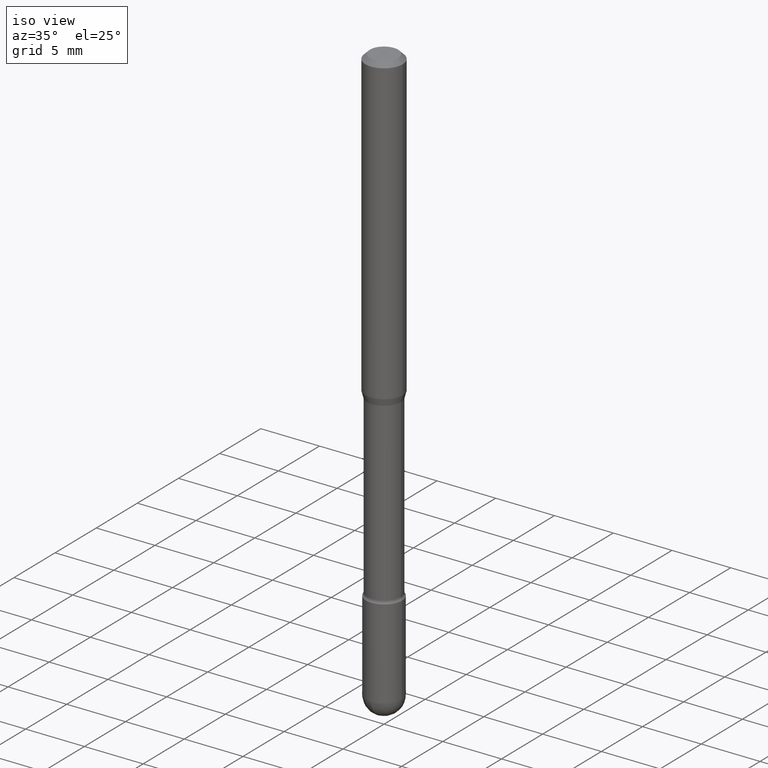
[diagram: clean part render]
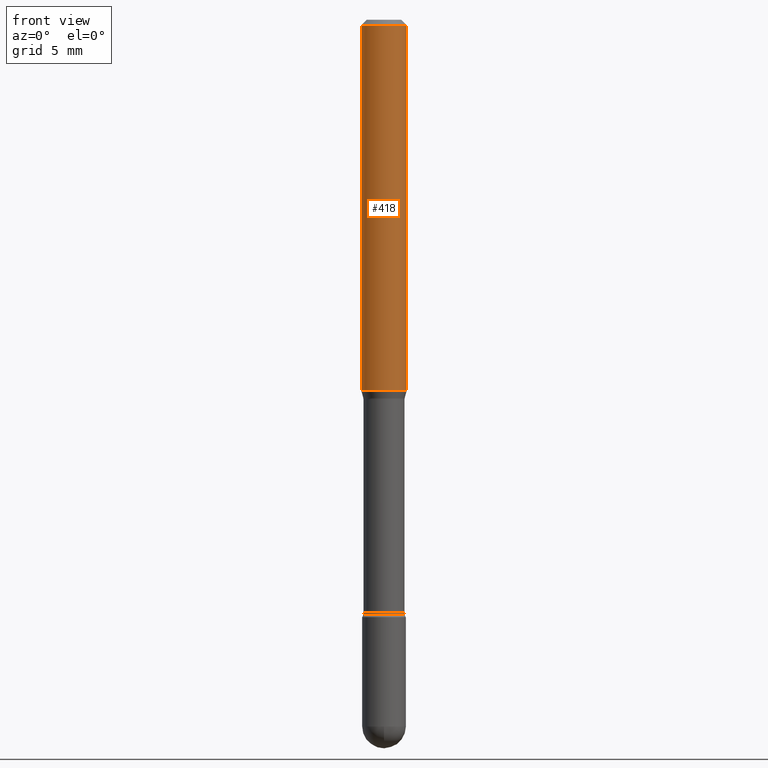
[diagram: tour spotlight — one face highlighted and labeled with its STEP entity id]
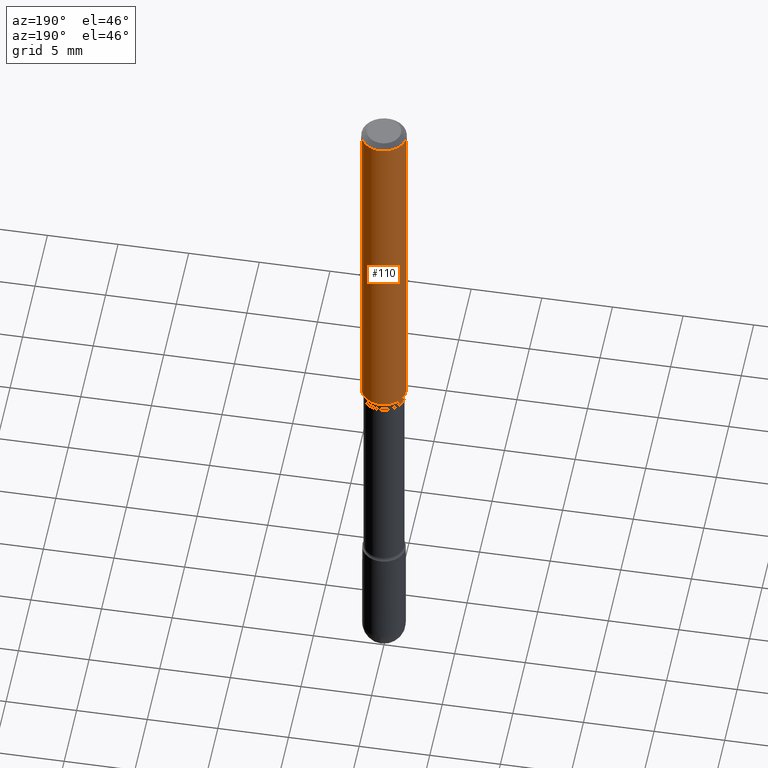
[diagram: tour spotlight — one face highlighted and labeled with its STEP entity id]
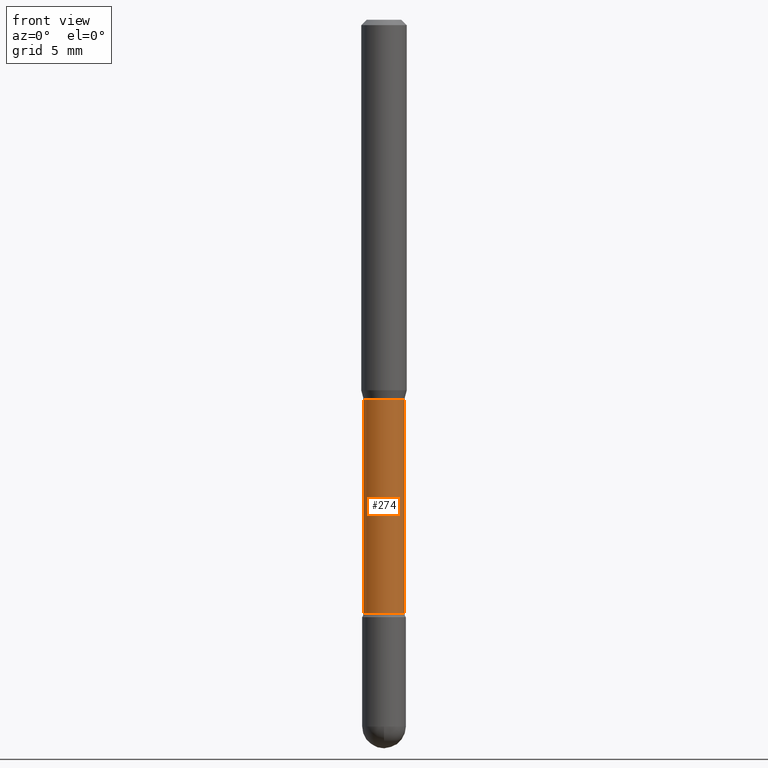
[diagram: tour spotlight — one face highlighted and labeled with its STEP entity id]
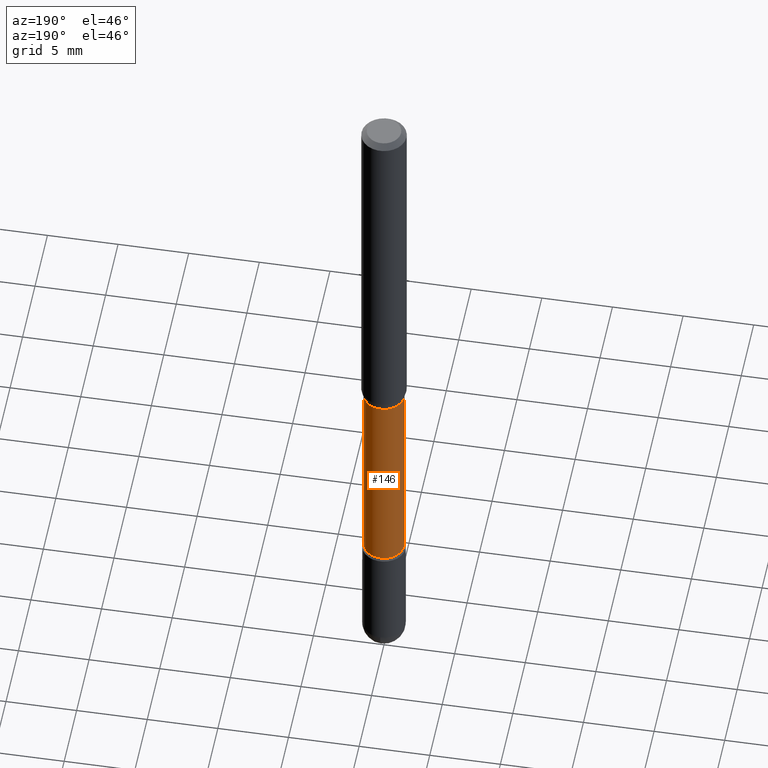
[diagram: tour spotlight — one face highlighted and labeled with its STEP entity id]
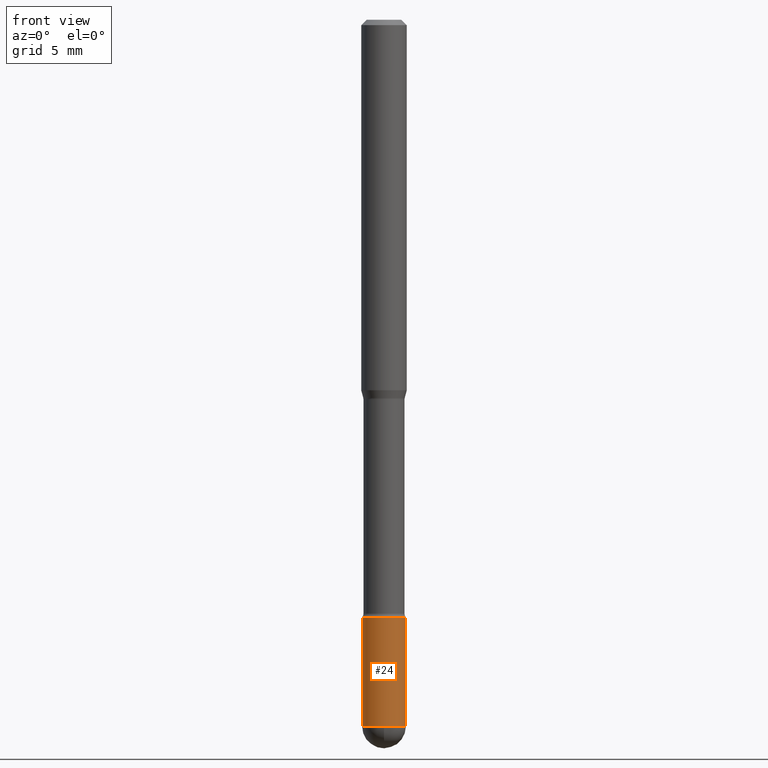
[diagram: tour spotlight — one face highlighted and labeled with its STEP entity id]
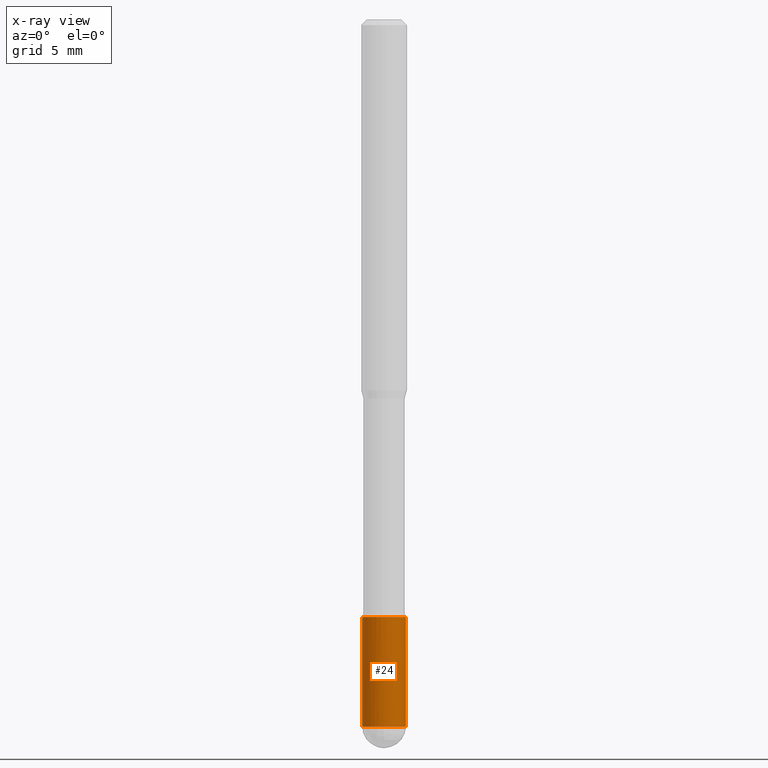
[diagram: x-ray of the same camera — body ghosted, this tour face saturated]
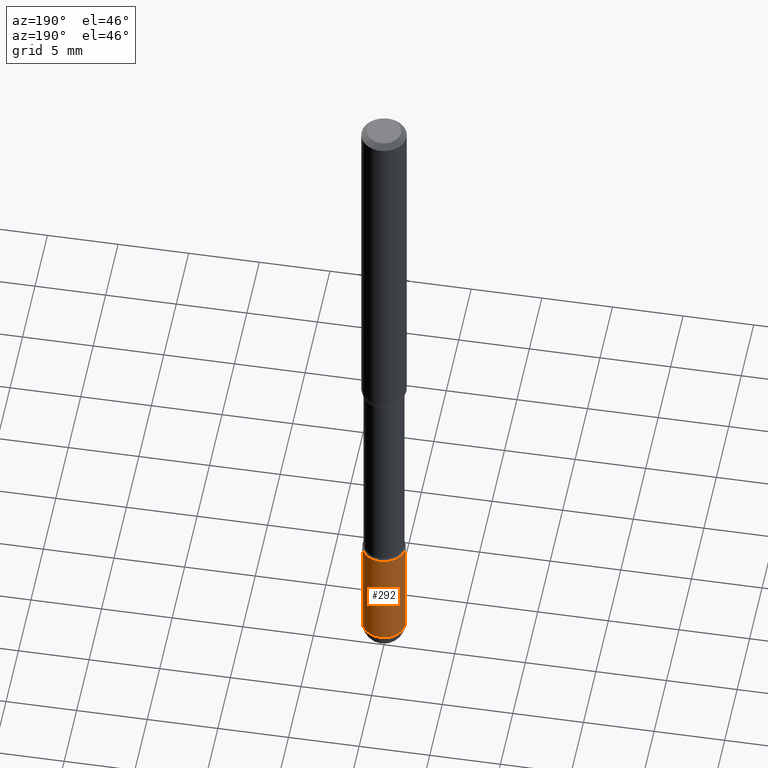
[diagram: tour spotlight — one face highlighted and labeled with its STEP entity id]
A machine part: a face-by-face anatomy tour. The part has 19 B-rep faces; the first image is the clean iso view, then the 6 largest visible faces are spotlighted one at a time (largest first), each with its STEP entity span.

Face 1 — front view, entity #418. In plain terms, the highlighted cylindrical surface (edge-blend (fillet) strip) has radius 1.5875 mm, axis along (-0, 0, 1).
Definition (entity closure, byte-faithful):
#7 = LINE ( 'NONE', #372, #554 ) ;
#12 = DIRECTION ( 'NONE',  ( 1.000000000000000000, -6.982962677686262766E-15, 0.000000000000000000 ) ) ;
#43 = CARTESIAN_POINT ( 'NONE',  ( -0.06250000000000000000, -3.107566029470336357E-15, -1.017234490073829489 ) ) ;
#58 = DIRECTION ( 'NONE',  ( 1.000000000000000000, -6.982962677686266711E-15, 4.852736867747366207E-29 ) ) ;
#62 = VECTOR ( 'NONE', #365, 39.37007874015748143 ) ;
#108 = CARTESIAN_POINT ( 'NONE',  ( 0.06250000000000000000, -4.888073874380391431E-16, -0.01500000000000008271 ) ) ;
#109 = VERTEX_POINT ( 'NONE', #192 ) ;
#153 = LINE ( 'NONE', #453, #62 ) ;
#154 = ORIENTED_EDGE ( 'NONE', *, *, #481, .T. ) ;
#156 = FACE_OUTER_BOUND ( 'NONE', #458, .T. ) ;
#168 = ORIENTED_EDGE ( 'NONE', *, *, #556, .F. ) ;
#192 = CARTESIAN_POINT ( 'NONE',  ( -0.06250000000000000000, -1.357924519851460804E-15, -0.01500000000000008271 ) ) ;
#230 = AXIS2_PLACEMENT_3D ( 'NONE', #451, #500, #58 ) ;
#242 = CYLINDRICAL_SURFACE ( 'NONE', #230, 0.06250000000000000000 ) ;
#248 = AXIS2_PLACEMENT_3D ( 'NONE', #348, #564, #12 ) ;
#291 = CARTESIAN_POINT ( 'NONE',  ( 3.668203209277725232E-31, -5.237222008264747365E-17, -0.01500000000000008271 ) ) ;
#307 = VERTEX_POINT ( 'NONE', #43 ) ;
#327 = AXIS2_PLACEMENT_3D ( 'NONE', #291, #403, #529 ) ;
#348 = CARTESIAN_POINT ( 'NONE',  ( 2.487615214051194037E-29, -3.551655239320398973E-15, -1.017234490073829489 ) ) ;
#358 = VERTEX_POINT ( 'NONE', #437 ) ;
#365 = DIRECTION ( 'NONE',  ( -2.445468806185136877E-29, 3.491481338843145188E-15, 1.000000000000000000 ) ) ;
#372 = CARTESIAN_POINT ( 'NONE',  ( -0.06250000000000000000, 4.440892098500642925E-16, 4.780733988912429571E-16 ) ) ;
#403 = DIRECTION ( 'NONE',  ( -2.445468806185136597E-29, 3.491481338843145583E-15, 1.000000000000000000 ) ) ;
#418 = ADVANCED_FACE ( 'NONE', ( #156 ), #242, .T. ) ;
#428 = ORIENTED_EDGE ( 'NONE', *, *, #462, .F. ) ;
#435 = EDGE_CURVE ( 'NONE', #307, #358, #484, .T. ) ;
#437 = CARTESIAN_POINT ( 'NONE',  ( 0.06250000000000000000, -3.988090406675790248E-15, -1.017234490073829489 ) ) ;
#451 = CARTESIAN_POINT ( 'NONE',  ( -1.169113584055446105E-44, 1.669184350826100908E-30, 4.780733988912460139E-16 ) ) ;
#453 = CARTESIAN_POINT ( 'NONE',  ( 0.06250000000000000000, -4.364351673553899931E-16, 4.780733988912490708E-16 ) ) ;
#458 = EDGE_LOOP ( 'NONE', ( #428, #561, #154, #168 ) ) ;
#462 = EDGE_CURVE ( 'NONE', #307, #109, #7, .T. ) ;
#481 = EDGE_CURVE ( 'NONE', #358, #557, #153, .T. ) ;
#484 = CIRCLE ( 'NONE', #248, 0.06250000000000000000 ) ;
#500 = DIRECTION ( 'NONE',  ( -2.445468806185136597E-29, 3.491481338843145583E-15, 1.000000000000000000 ) ) ;
#529 = DIRECTION ( 'NONE',  ( 1.000000000000000000, -6.982962677686266711E-15, 0.000000000000000000 ) ) ;
#534 = DIRECTION ( 'NONE',  ( -2.445468806185136877E-29, 3.491481338843145188E-15, 1.000000000000000000 ) ) ;
#554 = VECTOR ( 'NONE', #534, 39.37007874015748143 ) ;
#556 = EDGE_CURVE ( 'NONE', #109, #557, #565, .T. ) ;
#557 = VERTEX_POINT ( 'NONE', #108 ) ;
#561 = ORIENTED_EDGE ( 'NONE', *, *, #435, .T. ) ;
#564 = DIRECTION ( 'NONE',  ( -2.445468806185136597E-29, 3.491481338843145583E-15, 1.000000000000000000 ) ) ;
#565 = CIRCLE ( 'NONE', #327, 0.06250000000000000000 ) ;

Face 2 — auxiliary view, entity #110. In plain terms, the highlighted cylindrical surface (edge-blend (fillet) strip) has radius 1.5875 mm, axis along (-0, 0, 1).
Definition (entity closure, byte-faithful):
#3 = FACE_OUTER_BOUND ( 'NONE', #38, .T. ) ;
#7 = LINE ( 'NONE', #372, #554 ) ;
#38 = EDGE_LOOP ( 'NONE', ( #503, #163, #498, #310 ) ) ;
#43 = CARTESIAN_POINT ( 'NONE',  ( -0.06250000000000000000, -3.107566029470336357E-15, -1.017234490073829489 ) ) ;
#44 = DIRECTION ( 'NONE',  ( -2.445468806185136597E-29, 3.491481338843145583E-15, 1.000000000000000000 ) ) ;
#45 = AXIS2_PLACEMENT_3D ( 'NONE', #366, #531, #46 ) ;
#46 = DIRECTION ( 'NONE',  ( 1.000000000000000000, -6.982962677686266711E-15, 4.852736867747366207E-29 ) ) ;
#62 = VECTOR ( 'NONE', #365, 39.37007874015748143 ) ;
#108 = CARTESIAN_POINT ( 'NONE',  ( 0.06250000000000000000, -4.888073874380391431E-16, -0.01500000000000008271 ) ) ;
#109 = VERTEX_POINT ( 'NONE', #192 ) ;
#110 = ADVANCED_FACE ( 'NONE', ( #3 ), #137, .T. ) ;
#134 = DIRECTION ( 'NONE',  ( -2.445468806185136597E-29, 3.491481338843145583E-15, 1.000000000000000000 ) ) ;
#137 = CYLINDRICAL_SURFACE ( 'NONE', #45, 0.06250000000000000000 ) ;
#153 = LINE ( 'NONE', #453, #62 ) ;
#163 = ORIENTED_EDGE ( 'NONE', *, *, #462, .T. ) ;
#190 = CIRCLE ( 'NONE', #394, 0.06250000000000000000 ) ;
#192 = CARTESIAN_POINT ( 'NONE',  ( -0.06250000000000000000, -1.357924519851460804E-15, -0.01500000000000008271 ) ) ;
#196 = CIRCLE ( 'NONE', #491, 0.06250000000000000000 ) ;
#214 = CARTESIAN_POINT ( 'NONE',  ( 3.668203209277725232E-31, -5.237222008264747365E-17, -0.01500000000000008271 ) ) ;
#231 = DIRECTION ( 'NONE',  ( 1.000000000000000000, -6.982962677686262766E-15, 0.000000000000000000 ) ) ;
#249 = EDGE_CURVE ( 'NONE', #358, #307, #190, .T. ) ;
#307 = VERTEX_POINT ( 'NONE', #43 ) ;
#310 = ORIENTED_EDGE ( 'NONE', *, *, #481, .F. ) ;
#346 = EDGE_CURVE ( 'NONE', #557, #109, #196, .T. ) ;
#358 = VERTEX_POINT ( 'NONE', #437 ) ;
#365 = DIRECTION ( 'NONE',  ( -2.445468806185136877E-29, 3.491481338843145188E-15, 1.000000000000000000 ) ) ;
#366 = CARTESIAN_POINT ( 'NONE',  ( -1.169113584055446105E-44, 1.669184350826100908E-30, 4.780733988912460139E-16 ) ) ;
#372 = CARTESIAN_POINT ( 'NONE',  ( -0.06250000000000000000, 4.440892098500642925E-16, 4.780733988912429571E-16 ) ) ;
#394 = AXIS2_PLACEMENT_3D ( 'NONE', #560, #44, #231 ) ;
#437 = CARTESIAN_POINT ( 'NONE',  ( 0.06250000000000000000, -3.988090406675790248E-15, -1.017234490073829489 ) ) ;
#453 = CARTESIAN_POINT ( 'NONE',  ( 0.06250000000000000000, -4.364351673553899931E-16, 4.780733988912490708E-16 ) ) ;
#462 = EDGE_CURVE ( 'NONE', #307, #109, #7, .T. ) ;
#481 = EDGE_CURVE ( 'NONE', #358, #557, #153, .T. ) ;
#491 = AXIS2_PLACEMENT_3D ( 'NONE', #214, #134, #525 ) ;
#498 = ORIENTED_EDGE ( 'NONE', *, *, #346, .F. ) ;
#503 = ORIENTED_EDGE ( 'NONE', *, *, #249, .T. ) ;
#525 = DIRECTION ( 'NONE',  ( 1.000000000000000000, -6.982962677686266711E-15, 0.000000000000000000 ) ) ;
#531 = DIRECTION ( 'NONE',  ( -2.445468806185136597E-29, 3.491481338843145583E-15, 1.000000000000000000 ) ) ;
#534 = DIRECTION ( 'NONE',  ( -2.445468806185136877E-29, 3.491481338843145188E-15, 1.000000000000000000 ) ) ;
#554 = VECTOR ( 'NONE', #534, 39.37007874015748143 ) ;
#557 = VERTEX_POINT ( 'NONE', #108 ) ;
#560 = CARTESIAN_POINT ( 'NONE',  ( 2.487615214051194037E-29, -3.551655239320398973E-15, -1.017234490073829489 ) ) ;

Face 3 — front view, entity #274. In plain terms, the highlighted cylindrical surface (edge-blend (fillet) strip) has radius 1.4326 mm, axis along (-0, 0, 1).
Definition (entity closure, byte-faithful):
#6 = CARTESIAN_POINT ( 'NONE',  ( 3.986728343145078796E-29, -5.691991481519760406E-15, -1.630251153914436646 ) ) ;
#26 = ORIENTED_EDGE ( 'NONE', *, *, #233, .F. ) ;
#34 = DIRECTION ( 'NONE',  ( -2.445468806185136877E-29, 3.491481338843145188E-15, 1.000000000000000000 ) ) ;
#64 = EDGE_LOOP ( 'NONE', ( #252, #88, #390, #26 ) ) ;
#81 = CARTESIAN_POINT ( 'NONE',  ( -1.169113584055446105E-44, 1.669184350826100908E-30, 4.780733988912460139E-16 ) ) ;
#88 = ORIENTED_EDGE ( 'NONE', *, *, #551, .T. ) ;
#106 = CIRCLE ( 'NONE', #198, 0.05640000000000004732 ) ;
#151 = DIRECTION ( 'NONE',  ( 1.000000000000000000, -6.982962677686271444E-15, 0.000000000000000000 ) ) ;
#152 = VERTEX_POINT ( 'NONE', #362 ) ;
#176 = DIRECTION ( 'NONE',  ( -2.445468806185136597E-29, 3.491481338843145583E-15, 1.000000000000000000 ) ) ;
#198 = AXIS2_PLACEMENT_3D ( 'NONE', #6, #536, #151 ) ;
#203 = EDGE_CURVE ( 'NONE', #513, #464, #468, .T. ) ;
#221 = DIRECTION ( 'NONE',  ( 1.000000000000000000, -6.982962677686269077E-15, 0.000000000000000000 ) ) ;
#233 = EDGE_CURVE ( 'NONE', #464, #452, #472, .T. ) ;
#252 = ORIENTED_EDGE ( 'NONE', *, *, #203, .F. ) ;
#274 = ADVANCED_FACE ( 'NONE', ( #470 ), #522, .T. ) ;
#279 = VECTOR ( 'NONE', #369, 39.37007874015748143 ) ;
#344 = AXIS2_PLACEMENT_3D ( 'NONE', #514, #176, #221 ) ;
#356 = CARTESIAN_POINT ( 'NONE',  ( -0.05640000000000002650, 4.007461029686984188E-16, 4.780733988912432529E-16 ) ) ;
#357 = CARTESIAN_POINT ( 'NONE',  ( -0.05640000000000004732, -5.295474566398881529E-15, -1.630251153914436646 ) ) ;
#362 = CARTESIAN_POINT ( 'NONE',  ( 0.05640000000000004732, -6.085830576541266600E-15, -1.630251153914436646 ) ) ;
#364 = VECTOR ( 'NONE', #34, 39.37007874015748143 ) ;
#369 = DIRECTION ( 'NONE',  ( -2.445468806185136877E-29, 3.491481338843145188E-15, 1.000000000000000000 ) ) ;
#390 = ORIENTED_EDGE ( 'NONE', *, *, #448, .T. ) ;
#446 = CARTESIAN_POINT ( 'NONE',  ( 0.05640000000000000568, -4.031874620996453335E-15, -1.041974787463810559 ) ) ;
#448 = EDGE_CURVE ( 'NONE', #152, #452, #499, .T. ) ;
#452 = VERTEX_POINT ( 'NONE', #446 ) ;
#457 = CARTESIAN_POINT ( 'NONE',  ( -0.05640000000000000568, -4.264267400778657623E-15, -1.041974787463810559 ) ) ;
#464 = VERTEX_POINT ( 'NONE', #457 ) ;
#468 = LINE ( 'NONE', #356, #364 ) ;
#470 = FACE_OUTER_BOUND ( 'NONE', #64, .T. ) ;
#472 = CIRCLE ( 'NONE', #344, 0.05640000000000000568 ) ;
#474 = DIRECTION ( 'NONE',  ( -2.445468806185136597E-29, 3.491481338843145583E-15, 1.000000000000000000 ) ) ;
#482 = DIRECTION ( 'NONE',  ( 1.000000000000000000, -6.982962677686267499E-15, 4.839830652673567839E-29 ) ) ;
#499 = LINE ( 'NONE', #538, #279 ) ;
#513 = VERTEX_POINT ( 'NONE', #357 ) ;
#514 = CARTESIAN_POINT ( 'NONE',  ( 2.548116839574135909E-29, -3.638035525974947142E-15, -1.041974787463810559 ) ) ;
#522 = CYLINDRICAL_SURFACE ( 'NONE', #545, 0.05640000000000002650 ) ;
#536 = DIRECTION ( 'NONE',  ( -2.445468806185136597E-29, 3.491481338843145583E-15, 1.000000000000000000 ) ) ;
#538 = CARTESIAN_POINT ( 'NONE',  ( 0.05640000000000002650, -3.938390950215039255E-16, 4.780733988912487749E-16 ) ) ;
#545 = AXIS2_PLACEMENT_3D ( 'NONE', #81, #474, #482 ) ;
#551 = EDGE_CURVE ( 'NONE', #513, #152, #106, .T. ) ;

Face 4 — auxiliary view, entity #146. In plain terms, the highlighted cylindrical surface (edge-blend (fillet) strip) has radius 1.4326 mm, axis along (-0, 0, 1).
Definition (entity closure, byte-faithful):
#4 = DIRECTION ( 'NONE',  ( 1.000000000000000000, -6.982962677686267499E-15, 4.839830652673567839E-29 ) ) ;
#16 = EDGE_CURVE ( 'NONE', #452, #464, #387, .T. ) ;
#33 = CARTESIAN_POINT ( 'NONE',  ( 2.548116839574135909E-29, -3.638035525974947142E-15, -1.041974787463810559 ) ) ;
#34 = DIRECTION ( 'NONE',  ( -2.445468806185136877E-29, 3.491481338843145188E-15, 1.000000000000000000 ) ) ;
#51 = FACE_OUTER_BOUND ( 'NONE', #303, .T. ) ;
#95 = DIRECTION ( 'NONE',  ( 1.000000000000000000, -6.982962677686271444E-15, 0.000000000000000000 ) ) ;
#118 = AXIS2_PLACEMENT_3D ( 'NONE', #317, #277, #95 ) ;
#146 = ADVANCED_FACE ( 'NONE', ( #51 ), #524, .T. ) ;
#152 = VERTEX_POINT ( 'NONE', #362 ) ;
#164 = EDGE_CURVE ( 'NONE', #152, #513, #354, .T. ) ;
#203 = EDGE_CURVE ( 'NONE', #513, #464, #468, .T. ) ;
#275 = DIRECTION ( 'NONE',  ( -2.445468806185136597E-29, 3.491481338843145583E-15, 1.000000000000000000 ) ) ;
#277 = DIRECTION ( 'NONE',  ( -2.445468806185136597E-29, 3.491481338843145583E-15, 1.000000000000000000 ) ) ;
#279 = VECTOR ( 'NONE', #369, 39.37007874015748143 ) ;
#303 = EDGE_LOOP ( 'NONE', ( #306, #537, #558, #562 ) ) ;
#306 = ORIENTED_EDGE ( 'NONE', *, *, #164, .T. ) ;
#317 = CARTESIAN_POINT ( 'NONE',  ( 3.986728343145078796E-29, -5.691991481519760406E-15, -1.630251153914436646 ) ) ;
#326 = AXIS2_PLACEMENT_3D ( 'NONE', #488, #440, #4 ) ;
#354 = CIRCLE ( 'NONE', #118, 0.05640000000000004732 ) ;
#356 = CARTESIAN_POINT ( 'NONE',  ( -0.05640000000000002650, 4.007461029686984188E-16, 4.780733988912432529E-16 ) ) ;
#357 = CARTESIAN_POINT ( 'NONE',  ( -0.05640000000000004732, -5.295474566398881529E-15, -1.630251153914436646 ) ) ;
#362 = CARTESIAN_POINT ( 'NONE',  ( 0.05640000000000004732, -6.085830576541266600E-15, -1.630251153914436646 ) ) ;
#364 = VECTOR ( 'NONE', #34, 39.37007874015748143 ) ;
#369 = DIRECTION ( 'NONE',  ( -2.445468806185136877E-29, 3.491481338843145188E-15, 1.000000000000000000 ) ) ;
#387 = CIRCLE ( 'NONE', #427, 0.05640000000000000568 ) ;
#427 = AXIS2_PLACEMENT_3D ( 'NONE', #33, #275, #429 ) ;
#429 = DIRECTION ( 'NONE',  ( 1.000000000000000000, -6.982962677686269077E-15, 0.000000000000000000 ) ) ;
#440 = DIRECTION ( 'NONE',  ( -2.445468806185136597E-29, 3.491481338843145583E-15, 1.000000000000000000 ) ) ;
#446 = CARTESIAN_POINT ( 'NONE',  ( 0.05640000000000000568, -4.031874620996453335E-15, -1.041974787463810559 ) ) ;
#448 = EDGE_CURVE ( 'NONE', #152, #452, #499, .T. ) ;
#452 = VERTEX_POINT ( 'NONE', #446 ) ;
#457 = CARTESIAN_POINT ( 'NONE',  ( -0.05640000000000000568, -4.264267400778657623E-15, -1.041974787463810559 ) ) ;
#464 = VERTEX_POINT ( 'NONE', #457 ) ;
#468 = LINE ( 'NONE', #356, #364 ) ;
#488 = CARTESIAN_POINT ( 'NONE',  ( -1.169113584055446105E-44, 1.669184350826100908E-30, 4.780733988912460139E-16 ) ) ;
#499 = LINE ( 'NONE', #538, #279 ) ;
#513 = VERTEX_POINT ( 'NONE', #357 ) ;
#524 = CYLINDRICAL_SURFACE ( 'NONE', #326, 0.05640000000000002650 ) ;
#537 = ORIENTED_EDGE ( 'NONE', *, *, #203, .T. ) ;
#538 = CARTESIAN_POINT ( 'NONE',  ( 0.05640000000000002650, -3.938390950215039255E-16, 4.780733988912487749E-16 ) ) ;
#558 = ORIENTED_EDGE ( 'NONE', *, *, #16, .F. ) ;
#562 = ORIENTED_EDGE ( 'NONE', *, *, #448, .F. ) ;

Face 5 — front view, entity #24. An x-ray twin of the same camera follows (body ghosted, this face saturated) — the face is partly hidden behind the body. In plain terms, the highlighted cylindrical surface (edge-blend (fillet) strip) has radius 1.524 mm, axis along (-0, 0, 1).
Definition (entity closure, byte-faithful):
#1 = CARTESIAN_POINT ( 'NONE',  ( 0.06000000000000001166, -6.668729357190407112E-15, -1.940000000000000169 ) ) ;
#2 = EDGE_LOOP ( 'NONE', ( #114, #205, #415, #511, #37 ) ) ;
#24 = ADVANCED_FACE ( 'NONE', ( #42 ), #347, .T. ) ;
#25 = CARTESIAN_POINT ( 'NONE',  ( -0.06000000000000001166, 4.263256414560601944E-16, -2.951361054152943763E-30 ) ) ;
#35 = VECTOR ( 'NONE', #338, 39.37007874015748143 ) ;
#37 = ORIENTED_EDGE ( 'NONE', *, *, #57, .F. ) ;
#42 = FACE_OUTER_BOUND ( 'NONE', #2, .T. ) ;
#47 = AXIS2_PLACEMENT_3D ( 'NONE', #266, #136, #133 ) ;
#57 = EDGE_CURVE ( 'NONE', #393, #206, #189, .T. ) ;
#87 = LINE ( 'NONE', #269, #309 ) ;
#90 = DIRECTION ( 'NONE',  ( -2.445468806185136597E-29, 3.491481338843145583E-15, 1.000000000000000000 ) ) ;
#111 = AXIS2_PLACEMENT_3D ( 'NONE', #355, #90, #467 ) ;
#114 = ORIENTED_EDGE ( 'NONE', *, *, #312, .F. ) ;
#116 = VERTEX_POINT ( 'NONE', #188 ) ;
#121 = DIRECTION ( 'NONE',  ( 1.000000000000000000, -6.982962677686268288E-15, 0.000000000000000000 ) ) ;
#133 = DIRECTION ( 'NONE',  ( 1.000000000000000000, -6.982962677686266711E-15, 0.000000000000000000 ) ) ;
#136 = DIRECTION ( 'NONE',  ( -2.445468806185136597E-29, 3.491481338843145583E-15, 1.000000000000000000 ) ) ;
#173 = CARTESIAN_POINT ( 'NONE',  ( 0.05999999999999999778, -6.145007156363934742E-15, -1.639999999999999902 ) ) ;
#188 = CARTESIAN_POINT ( 'NONE',  ( -0.06000000000000001166, -5.823425955073170777E-15, -1.940000000000000169 ) ) ;
#189 = CIRCLE ( 'NONE', #401, 0.05999999999999999778 ) ;
#195 = VERTEX_POINT ( 'NONE', #1 ) ;
#202 = DIRECTION ( 'NONE',  ( -2.445468806185136597E-29, 3.491481338843145583E-15, 1.000000000000000000 ) ) ;
#205 = ORIENTED_EDGE ( 'NONE', *, *, #407, .T. ) ;
#206 = VERTEX_POINT ( 'NONE', #173 ) ;
#219 = AXIS2_PLACEMENT_3D ( 'NONE', #447, #202, #286 ) ;
#227 = LINE ( 'NONE', #25, #35 ) ;
#266 = CARTESIAN_POINT ( 'NONE',  ( 4.744209483999165043E-29, -6.773473797355702848E-15, -1.940000000000000169 ) ) ;
#269 = CARTESIAN_POINT ( 'NONE',  ( 0.06000000000000001166, -4.189777606611760914E-16, 2.925706065477562106E-30 ) ) ;
#284 = EDGE_CURVE ( 'NONE', #195, #206, #87, .T. ) ;
#286 = DIRECTION ( 'NONE',  ( 1.000000000000000000, -6.982962677686266711E-15, 0.000000000000000000 ) ) ;
#309 = VECTOR ( 'NONE', #553, 39.37007874015748143 ) ;
#312 = EDGE_CURVE ( 'NONE', #116, #393, #227, .T. ) ;
#338 = DIRECTION ( 'NONE',  ( -2.445468806185136877E-29, 3.491481338843145188E-15, 1.000000000000000000 ) ) ;
#343 = DIRECTION ( 'NONE',  ( -2.445468806185136597E-29, 3.491481338843145583E-15, 1.000000000000000000 ) ) ;
#347 = CYLINDRICAL_SURFACE ( 'NONE', #111, 0.06000000000000001166 ) ;
#355 = CARTESIAN_POINT ( 'NONE',  ( 0.000000000000000000, 0.000000000000000000, 0.000000000000000000 ) ) ;
#381 = VERTEX_POINT ( 'NONE', #479 ) ;
#389 = CIRCLE ( 'NONE', #47, 0.06000000000000001166 ) ;
#393 = VERTEX_POINT ( 'NONE', #434 ) ;
#401 = AXIS2_PLACEMENT_3D ( 'NONE', #422, #343, #121 ) ;
#407 = EDGE_CURVE ( 'NONE', #116, #381, #411, .T. ) ;
#411 = CIRCLE ( 'NONE', #219, 0.06000000000000001166 ) ;
#415 = ORIENTED_EDGE ( 'NONE', *, *, #521, .T. ) ;
#422 = CARTESIAN_POINT ( 'NONE',  ( 4.010568842143624288E-29, -5.726029395702758897E-15, -1.639999999999999902 ) ) ;
#434 = CARTESIAN_POINT ( 'NONE',  ( -0.05999999999999999778, -5.823425955073170777E-15, -1.639999999999999902 ) ) ;
#447 = CARTESIAN_POINT ( 'NONE',  ( 4.744209483999165043E-29, -6.773473797355702848E-15, -1.940000000000000169 ) ) ;
#467 = DIRECTION ( 'NONE',  ( 1.000000000000000000, -6.982962677686266711E-15, 4.876176775795935793E-29 ) ) ;
#479 = CARTESIAN_POINT ( 'NONE',  ( -4.263256414560125176E-16, -0.06000000000000675626, -1.939999999999999725 ) ) ;
#511 = ORIENTED_EDGE ( 'NONE', *, *, #284, .T. ) ;
#521 = EDGE_CURVE ( 'NONE', #381, #195, #389, .T. ) ;
#553 = DIRECTION ( 'NONE',  ( -2.445468806185136877E-29, 3.491481338843145188E-15, 1.000000000000000000 ) ) ;

Face 6 — auxiliary view, entity #292. In plain terms, the highlighted cylindrical surface (edge-blend (fillet) strip) has radius 1.524 mm, axis along (-0, 0, 1).
Definition (entity closure, byte-faithful):
#1 = CARTESIAN_POINT ( 'NONE',  ( 0.06000000000000001166, -6.668729357190407112E-15, -1.940000000000000169 ) ) ;
#25 = CARTESIAN_POINT ( 'NONE',  ( -0.06000000000000001166, 4.263256414560601944E-16, -2.951361054152943763E-30 ) ) ;
#35 = VECTOR ( 'NONE', #338, 39.37007874015748143 ) ;
#54 = AXIS2_PLACEMENT_3D ( 'NONE', #216, #386, #169 ) ;
#59 = EDGE_LOOP ( 'NONE', ( #351, #174, #379, #461, #559 ) ) ;
#60 = CARTESIAN_POINT ( 'NONE',  ( 4.189777606612232751E-16, 0.05999999999999321154, -1.940000000000000391 ) ) ;
#87 = LINE ( 'NONE', #269, #309 ) ;
#92 = DIRECTION ( 'NONE',  ( -2.445468806185136597E-29, 3.491481338843145583E-15, 1.000000000000000000 ) ) ;
#105 = AXIS2_PLACEMENT_3D ( 'NONE', #423, #432, #183 ) ;
#116 = VERTEX_POINT ( 'NONE', #188 ) ;
#135 = CYLINDRICAL_SURFACE ( 'NONE', #380, 0.06000000000000001166 ) ;
#138 = DIRECTION ( 'NONE',  ( -2.445468806185136597E-29, 3.491481338843145583E-15, 1.000000000000000000 ) ) ;
#167 = CARTESIAN_POINT ( 'NONE',  ( 4.010568842143624288E-29, -5.726029395702758897E-15, -1.639999999999999902 ) ) ;
#169 = DIRECTION ( 'NONE',  ( 1.000000000000000000, -6.982962677686266711E-15, 0.000000000000000000 ) ) ;
#173 = CARTESIAN_POINT ( 'NONE',  ( 0.05999999999999999778, -6.145007156363934742E-15, -1.639999999999999902 ) ) ;
#174 = ORIENTED_EDGE ( 'NONE', *, *, #312, .T. ) ;
#183 = DIRECTION ( 'NONE',  ( 1.000000000000000000, -6.982962677686266711E-15, 0.000000000000000000 ) ) ;
#188 = CARTESIAN_POINT ( 'NONE',  ( -0.06000000000000001166, -5.823425955073170777E-15, -1.940000000000000169 ) ) ;
#195 = VERTEX_POINT ( 'NONE', #1 ) ;
#206 = VERTEX_POINT ( 'NONE', #173 ) ;
#208 = CIRCLE ( 'NONE', #517, 0.05999999999999999778 ) ;
#216 = CARTESIAN_POINT ( 'NONE',  ( 4.744209483999165043E-29, -6.773473797355702848E-15, -1.940000000000000169 ) ) ;
#227 = LINE ( 'NONE', #25, #35 ) ;
#237 = EDGE_CURVE ( 'NONE', #424, #116, #426, .T. ) ;
#269 = CARTESIAN_POINT ( 'NONE',  ( 0.06000000000000001166, -4.189777606611760914E-16, 2.925706065477562106E-30 ) ) ;
#272 = FACE_OUTER_BOUND ( 'NONE', #59, .T. ) ;
#284 = EDGE_CURVE ( 'NONE', #195, #206, #87, .T. ) ;
#292 = ADVANCED_FACE ( 'NONE', ( #272 ), #135, .T. ) ;
#296 = CIRCLE ( 'NONE', #54, 0.06000000000000001166 ) ;
#301 = EDGE_CURVE ( 'NONE', #195, #424, #296, .T. ) ;
#309 = VECTOR ( 'NONE', #553, 39.37007874015748143 ) ;
#312 = EDGE_CURVE ( 'NONE', #116, #393, #227, .T. ) ;
#338 = DIRECTION ( 'NONE',  ( -2.445468806185136877E-29, 3.491481338843145188E-15, 1.000000000000000000 ) ) ;
#351 = ORIENTED_EDGE ( 'NONE', *, *, #237, .T. ) ;
#353 = EDGE_CURVE ( 'NONE', #206, #393, #208, .T. ) ;
#379 = ORIENTED_EDGE ( 'NONE', *, *, #353, .F. ) ;
#380 = AXIS2_PLACEMENT_3D ( 'NONE', #510, #92, #430 ) ;
#386 = DIRECTION ( 'NONE',  ( -2.445468806185136597E-29, 3.491481338843145583E-15, 1.000000000000000000 ) ) ;
#393 = VERTEX_POINT ( 'NONE', #434 ) ;
#423 = CARTESIAN_POINT ( 'NONE',  ( 4.744209483999165043E-29, -6.773473797355702848E-15, -1.940000000000000169 ) ) ;
#424 = VERTEX_POINT ( 'NONE', #60 ) ;
#426 = CIRCLE ( 'NONE', #105, 0.06000000000000001166 ) ;
#430 = DIRECTION ( 'NONE',  ( 1.000000000000000000, -6.982962677686266711E-15, 4.876176775795935793E-29 ) ) ;
#432 = DIRECTION ( 'NONE',  ( -2.445468806185136597E-29, 3.491481338843145583E-15, 1.000000000000000000 ) ) ;
#434 = CARTESIAN_POINT ( 'NONE',  ( -0.05999999999999999778, -5.823425955073170777E-15, -1.639999999999999902 ) ) ;
#461 = ORIENTED_EDGE ( 'NONE', *, *, #284, .F. ) ;
#510 = CARTESIAN_POINT ( 'NONE',  ( 0.000000000000000000, 0.000000000000000000, 0.000000000000000000 ) ) ;
#517 = AXIS2_PLACEMENT_3D ( 'NONE', #167, #138, #566 ) ;
#553 = DIRECTION ( 'NONE',  ( -2.445468806185136877E-29, 3.491481338843145188E-15, 1.000000000000000000 ) ) ;
#559 = ORIENTED_EDGE ( 'NONE', *, *, #301, .T. ) ;
#566 = DIRECTION ( 'NONE',  ( 1.000000000000000000, -6.982962677686268288E-15, 0.000000000000000000 ) ) ;